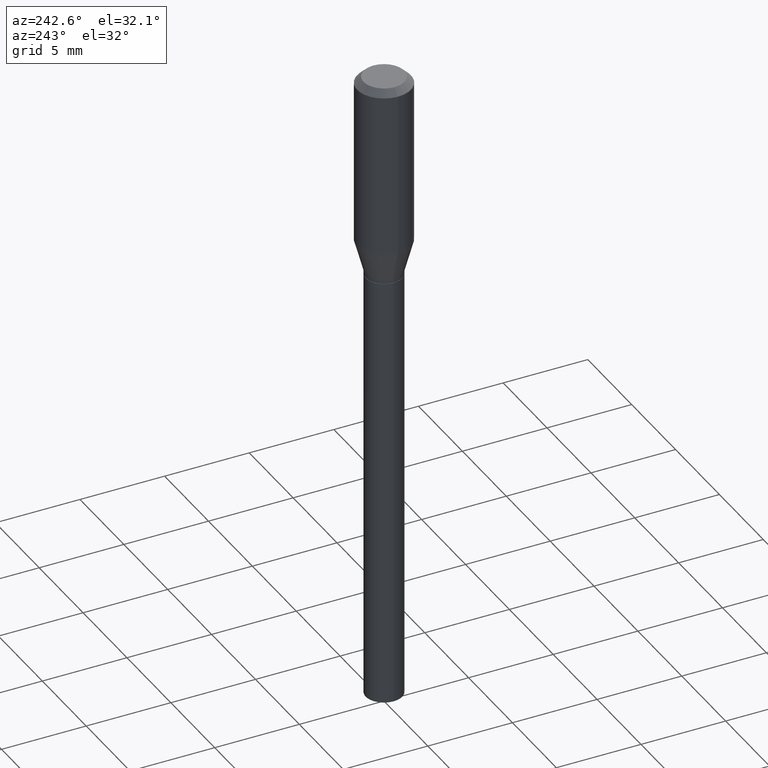
[diagram: clean part render]
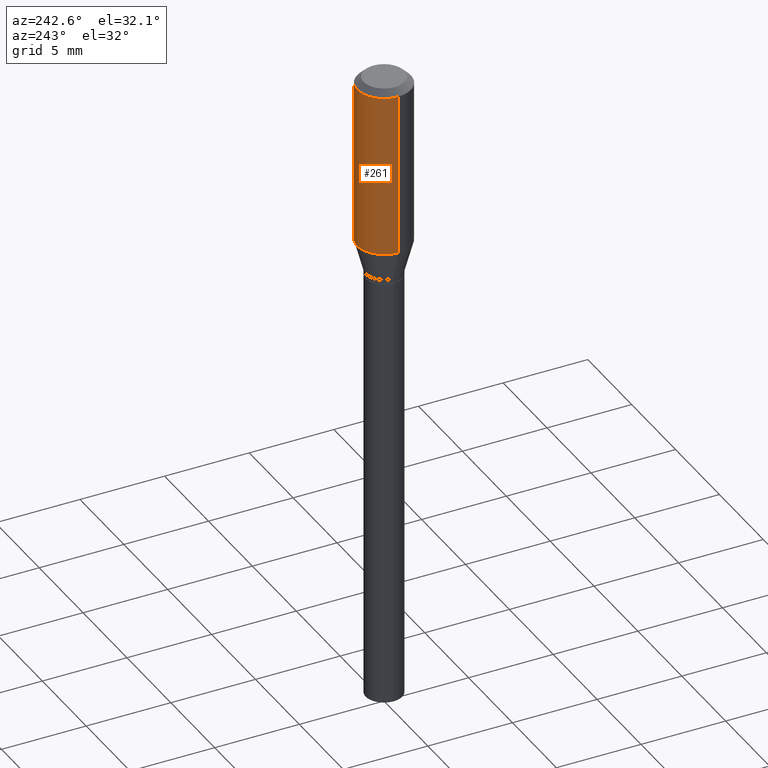
[diagram: same view with one face highlighted and labeled with its STEP entity id]
A machine part, auxiliary view. The second image highlights one B-rep face of the part: STEP entity #261.
In plain terms, the highlighted cylindrical surface (edge-blend (fillet) strip) has radius 1.5875 mm, axis along (-0, 0, 1).
Its self-contained STEP definition (entity closure, byte-faithful):
#11 = ORIENTED_EDGE ( 'NONE', *, *, #246, .F. ) ;
#13 = AXIS2_PLACEMENT_3D ( 'NONE', #243, #211, #423 ) ;
#45 = VECTOR ( 'NONE', #198, 39.37007874015748143 ) ;
#55 = FACE_OUTER_BOUND ( 'NONE', #253, .T. ) ;
#62 = VERTEX_POINT ( 'NONE', #258 ) ;
#93 = LINE ( 'NONE', #235, #408 ) ;
#130 = AXIS2_PLACEMENT_3D ( 'NONE', #416, #306, #343 ) ;
#198 = DIRECTION ( 'NONE',  ( -2.445468806185136877E-29, 3.491481338843145188E-15, 1.000000000000000000 ) ) ;
#211 = DIRECTION ( 'NONE',  ( -2.445468806185136597E-29, 3.491481338843145583E-15, 1.000000000000000000 ) ) ;
#235 = CARTESIAN_POINT ( 'NONE',  ( 0.06250000000000000000, -4.364351673553916694E-16, 3.047610484872459871E-30 ) ) ;
#240 = CARTESIAN_POINT ( 'NONE',  ( -0.06250000000000000000, 4.440892098500626162E-16, -3.074334431409316114E-30 ) ) ;
#242 = ORIENTED_EDGE ( 'NONE', *, *, #430, .T. ) ;
#243 = CARTESIAN_POINT ( 'NONE',  ( 0.000000000000000000, 0.000000000000000000, 0.000000000000000000 ) ) ;
#246 = EDGE_CURVE ( 'NONE', #260, #62, #93, .T. ) ;
#253 = EDGE_LOOP ( 'NONE', ( #308, #242, #322, #11 ) ) ;
#258 = CARTESIAN_POINT ( 'NONE',  ( 0.06250000000000000000, -4.888073874380388472E-16, -0.01499999999999999944 ) ) ;
#260 = VERTEX_POINT ( 'NONE', #382 ) ;
#261 = ADVANCED_FACE ( 'NONE', ( #55 ), #446, .T. ) ;
#281 = CARTESIAN_POINT ( 'NONE',  ( -0.06250000000000000000, -2.722911573169879398E-16, -0.01499999999999999944 ) ) ;
#299 = CARTESIAN_POINT ( 'NONE',  ( -0.06250000000000000000, -9.362993044013910222E-16, -0.3953589838486224473 ) ) ;
#306 = DIRECTION ( 'NONE',  ( -2.445468806185136597E-29, 3.491481338843145583E-15, 1.000000000000000000 ) ) ;
#308 = ORIENTED_EDGE ( 'NONE', *, *, #396, .T. ) ;
#316 = VERTEX_POINT ( 'NONE', #299 ) ;
#322 = ORIENTED_EDGE ( 'NONE', *, *, #447, .F. ) ;
#343 = DIRECTION ( 'NONE',  ( 1.000000000000000000, -6.982962677686266711E-15, 0.000000000000000000 ) ) ;
#346 = DIRECTION ( 'NONE',  ( -2.445468806185136877E-29, 3.491481338843145188E-15, 1.000000000000000000 ) ) ;
#382 = CARTESIAN_POINT ( 'NONE',  ( 0.06250000000000000000, -1.816823681606845702E-15, -0.3953589838486224473 ) ) ;
#394 = CIRCLE ( 'NONE', #130, 0.06250000000000000000 ) ;
#396 = EDGE_CURVE ( 'NONE', #260, #316, #394, .T. ) ;
#408 = VECTOR ( 'NONE', #346, 39.37007874015748143 ) ;
#416 = CARTESIAN_POINT ( 'NONE',  ( 9.668380622468593325E-30, -1.380388514251453836E-15, -0.3953589838486224473 ) ) ;
#421 = LINE ( 'NONE', #240, #45 ) ;
#423 = DIRECTION ( 'NONE',  ( 1.000000000000000000, -6.982962677686266711E-15, 4.876176775795935793E-29 ) ) ;
#430 = EDGE_CURVE ( 'NONE', #316, #462, #421, .T. ) ;
#445 = DIRECTION ( 'NONE',  ( 1.000000000000000000, -6.982962677686266711E-15, 0.000000000000000000 ) ) ;
#446 = CYLINDRICAL_SURFACE ( 'NONE', #13, 0.06250000000000000000 ) ;
#447 = EDGE_CURVE ( 'NONE', #62, #462, #463, .T. ) ;
#450 = AXIS2_PLACEMENT_3D ( 'NONE', #455, #451, #445 ) ;
#451 = DIRECTION ( 'NONE',  ( -2.445468806185136597E-29, 3.491481338843145583E-15, 1.000000000000000000 ) ) ;
#455 = CARTESIAN_POINT ( 'NONE',  ( 3.668203209277705088E-31, -5.237222008264718399E-17, -0.01499999999999999944 ) ) ;
#462 = VERTEX_POINT ( 'NONE', #281 ) ;
#463 = CIRCLE ( 'NONE', #450, 0.06250000000000000000 ) ;